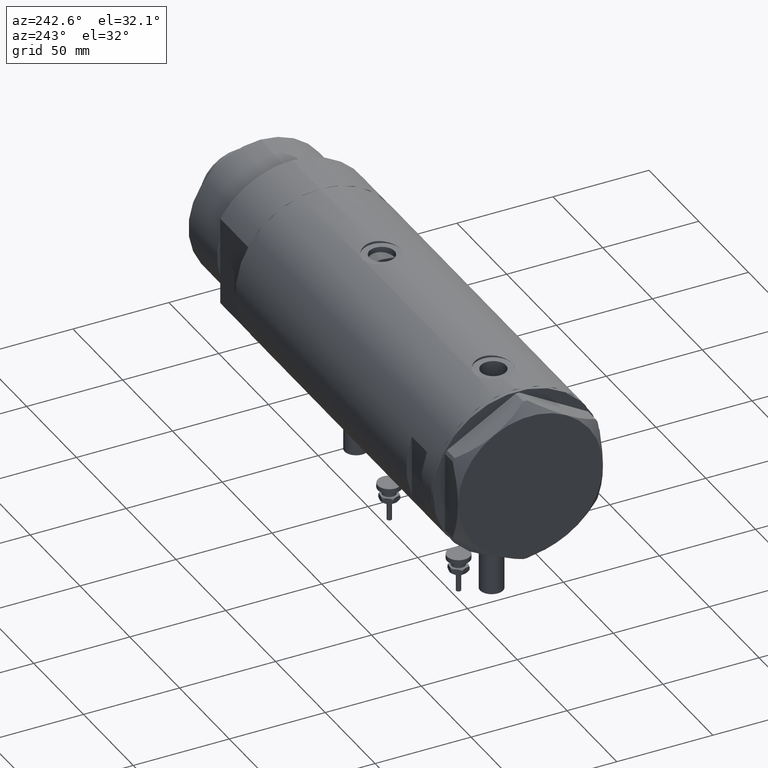
[diagram: clean part render]
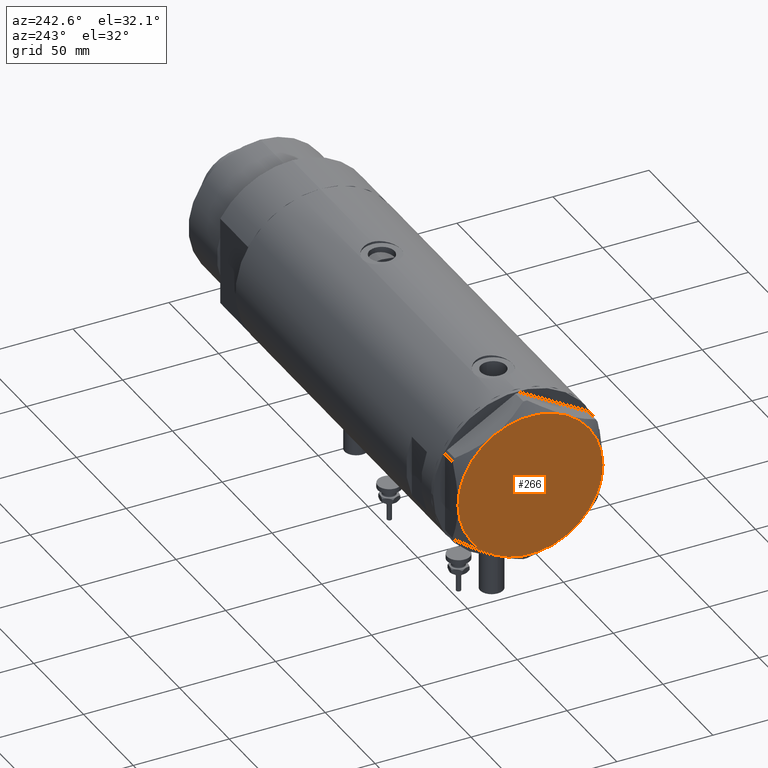
[diagram: same view with one face highlighted and labeled with its STEP entity id]
A machine part, auxiliary view. The second image highlights one B-rep face of the part: STEP entity #266.
In plain terms, the highlighted planar face has unit normal (-1, -0, 0).
Its self-contained STEP definition (entity closure, byte-faithful):
#19 = CIRCLE ( 'NONE', #5546, 37.75000000000000000 ) ;
#198 = VERTEX_POINT ( 'NONE', #2062 ) ;
#206 = CIRCLE ( 'NONE', #687, 37.75000000000000000 ) ;
#226 = CARTESIAN_POINT ( 'NONE',  ( 18.87499999999998579, -32.69245899286256218, 13.00000000000000000 ) ) ;
#266 = ADVANCED_FACE ( 'NONE', ( #2632 ), #1426, .T. ) ;
#278 = DIRECTION ( 'NONE',  ( 1.000000000000000000, 0.000000000000000000, 0.000000000000000000 ) ) ;
#287 = DIRECTION ( 'NONE',  ( 0.000000000000000000, 0.000000000000000000, 1.000000000000000000 ) ) ;
#293 = ORIENTED_EDGE ( 'NONE', *, *, #4836, .T. ) ;
#297 = ORIENTED_EDGE ( 'NONE', *, *, #698, .T. ) ;
#450 = CARTESIAN_POINT ( 'NONE',  ( 0.000000000000000000, 0.000000000000000000, 13.00000000000000000 ) ) ;
#457 = ORIENTED_EDGE ( 'NONE', *, *, #780, .T. ) ;
#549 = EDGE_CURVE ( 'NONE', #2217, #1843, #206, .T. ) ;
#603 = AXIS2_PLACEMENT_3D ( 'NONE', #1202, #287, #1229 ) ;
#687 = AXIS2_PLACEMENT_3D ( 'NONE', #5803, #3136, #278 ) ;
#698 = EDGE_CURVE ( 'NONE', #1190, #3714, #2055, .T. ) ;
#780 = EDGE_CURVE ( 'NONE', #3714, #2217, #4466, .T. ) ;
#1190 = VERTEX_POINT ( 'NONE', #3603 ) ;
#1202 = CARTESIAN_POINT ( 'NONE',  ( 0.000000000000000000, 0.000000000000000000, 13.00000000000000000 ) ) ;
#1229 = DIRECTION ( 'NONE',  ( 1.000000000000000000, 0.000000000000000000, 0.000000000000000000 ) ) ;
#1426 = PLANE ( 'NONE',  #2234 ) ;
#1491 = EDGE_CURVE ( 'NONE', #1576, #198, #19, .T. ) ;
#1576 = VERTEX_POINT ( 'NONE', #226 ) ;
#1753 = DIRECTION ( 'NONE',  ( 1.000000000000000000, 0.000000000000000000, 0.000000000000000000 ) ) ;
#1843 = VERTEX_POINT ( 'NONE', #2211 ) ;
#1916 = DIRECTION ( 'NONE',  ( 0.000000000000000000, 0.000000000000000000, 1.000000000000000000 ) ) ;
#2015 = DIRECTION ( 'NONE',  ( 1.000000000000000000, 0.000000000000000000, 0.000000000000000000 ) ) ;
#2042 = EDGE_CURVE ( 'NONE', #198, #1190, #5648, .T. ) ;
#2055 = CIRCLE ( 'NONE', #3803, 37.75000000000000000 ) ;
#2062 = CARTESIAN_POINT ( 'NONE',  ( 37.75000000000000711, 1.802777518484591547E-14, 13.00000000000000000 ) ) ;
#2211 = CARTESIAN_POINT ( 'NONE',  ( -18.87499999999999645, -32.69245899286255508, 13.00000000000000000 ) ) ;
#2217 = VERTEX_POINT ( 'NONE', #2790 ) ;
#2234 = AXIS2_PLACEMENT_3D ( 'NONE', #2605, #5531, #4476 ) ;
#2442 = ORIENTED_EDGE ( 'NONE', *, *, #549, .T. ) ;
#2605 = CARTESIAN_POINT ( 'NONE',  ( 0.000000000000000000, 0.000000000000000000, 13.00000000000000000 ) ) ;
#2632 = FACE_OUTER_BOUND ( 'NONE', #3639, .T. ) ;
#2758 = AXIS2_PLACEMENT_3D ( 'NONE', #3475, #4374, #2015 ) ;
#2790 = CARTESIAN_POINT ( 'NONE',  ( -37.75000000000000000, -1.201851678989727067E-14, 13.00000000000000000 ) ) ;
#2827 = CARTESIAN_POINT ( 'NONE',  ( 0.000000000000000000, 0.000000000000000000, 13.00000000000000000 ) ) ;
#2895 = ORIENTED_EDGE ( 'NONE', *, *, #2042, .T. ) ;
#3136 = DIRECTION ( 'NONE',  ( 0.000000000000000000, 0.000000000000000000, 1.000000000000000000 ) ) ;
#3475 = CARTESIAN_POINT ( 'NONE',  ( 0.000000000000000000, 0.000000000000000000, 13.00000000000000000 ) ) ;
#3603 = CARTESIAN_POINT ( 'NONE',  ( 18.87500000000000000, 32.69245899286255508, 13.00000000000000000 ) ) ;
#3639 = EDGE_LOOP ( 'NONE', ( #4352, #2895, #297, #457, #2442, #293 ) ) ;
#3714 = VERTEX_POINT ( 'NONE', #4623 ) ;
#3803 = AXIS2_PLACEMENT_3D ( 'NONE', #2827, #4078, #1753 ) ;
#4078 = DIRECTION ( 'NONE',  ( 0.000000000000000000, 0.000000000000000000, 1.000000000000000000 ) ) ;
#4352 = ORIENTED_EDGE ( 'NONE', *, *, #1491, .T. ) ;
#4374 = DIRECTION ( 'NONE',  ( 0.000000000000000000, 0.000000000000000000, 1.000000000000000000 ) ) ;
#4466 = CIRCLE ( 'NONE', #5250, 37.75000000000000000 ) ;
#4476 = DIRECTION ( 'NONE',  ( 1.000000000000000000, 0.000000000000000000, -0.000000000000000000 ) ) ;
#4623 = CARTESIAN_POINT ( 'NONE',  ( -18.87499999999999645, 32.69245899286256218, 13.00000000000000000 ) ) ;
#4801 = DIRECTION ( 'NONE',  ( 1.000000000000000000, 0.000000000000000000, 0.000000000000000000 ) ) ;
#4828 = CARTESIAN_POINT ( 'NONE',  ( 0.000000000000000000, 0.000000000000000000, 13.00000000000000000 ) ) ;
#4836 = EDGE_CURVE ( 'NONE', #1843, #1576, #5077, .T. ) ;
#5077 = CIRCLE ( 'NONE', #2758, 37.75000000000000000 ) ;
#5250 = AXIS2_PLACEMENT_3D ( 'NONE', #4828, #5704, #4801 ) ;
#5531 = DIRECTION ( 'NONE',  ( 0.000000000000000000, 0.000000000000000000, 1.000000000000000000 ) ) ;
#5546 = AXIS2_PLACEMENT_3D ( 'NONE', #450, #1916, #5705 ) ;
#5648 = CIRCLE ( 'NONE', #603, 37.75000000000000000 ) ;
#5704 = DIRECTION ( 'NONE',  ( 0.000000000000000000, 0.000000000000000000, 1.000000000000000000 ) ) ;
#5705 = DIRECTION ( 'NONE',  ( 1.000000000000000000, 0.000000000000000000, 0.000000000000000000 ) ) ;
#5803 = CARTESIAN_POINT ( 'NONE',  ( 0.000000000000000000, 0.000000000000000000, 13.00000000000000000 ) ) ;